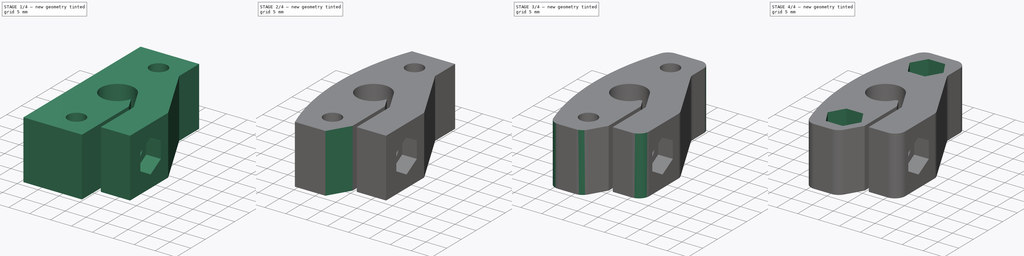
[diagram: build sequence overview — one tinted view per stage of 4, left to right]
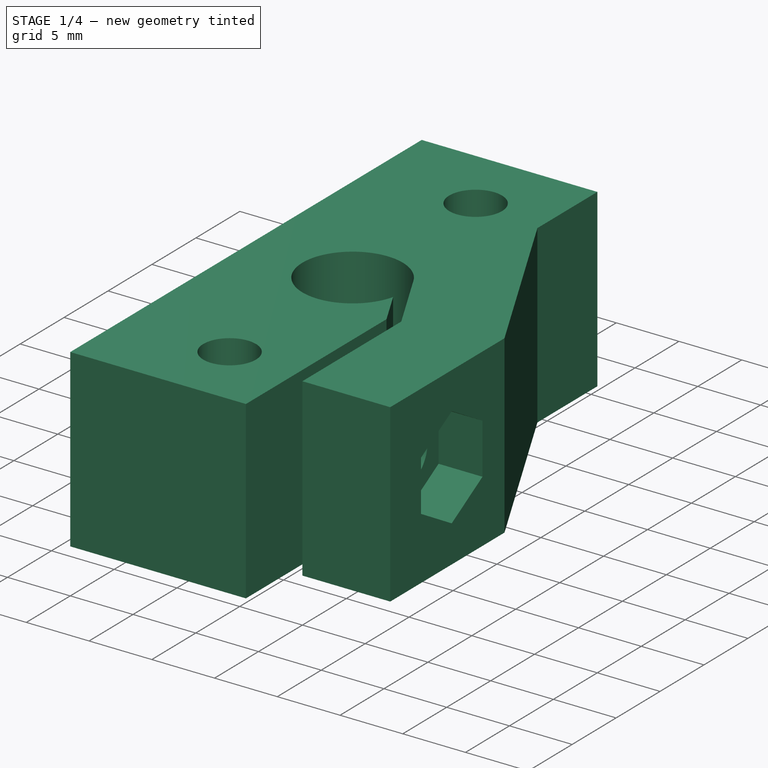
[diagram: stage 1 of 4 — iso view after this stage's code; geometry added in this stage tinted green]
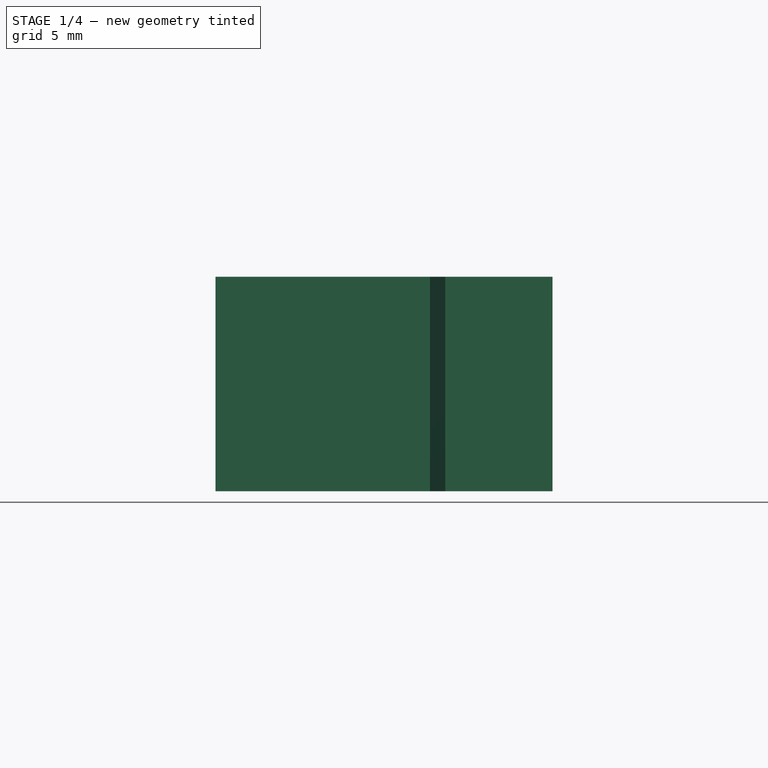
[diagram: stage 1 of 4 — front view after this stage's code; geometry added in this stage tinted green]
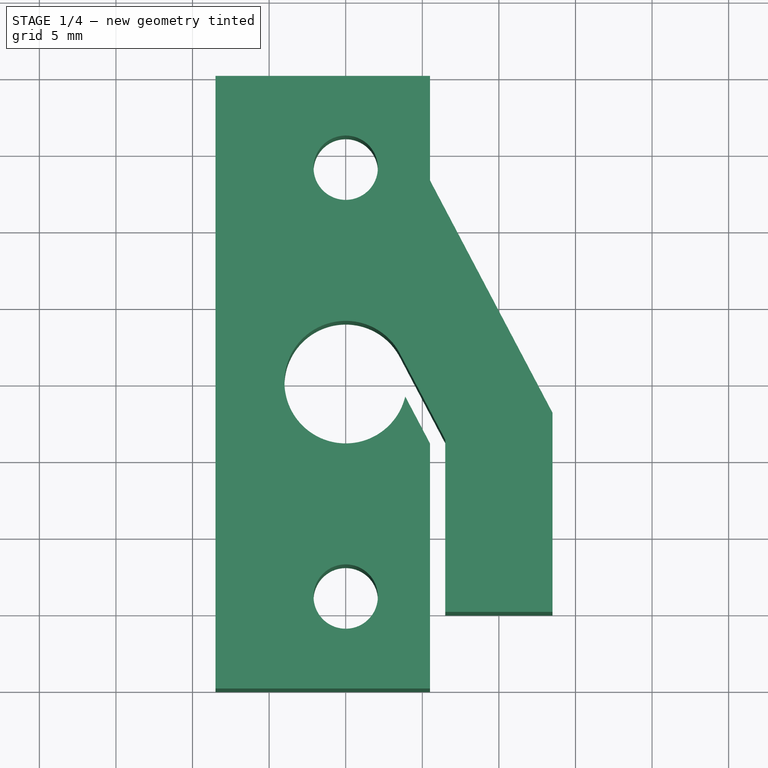
[diagram: stage 1 of 4 — top view after this stage's code; geometry added in this stage tinted green]
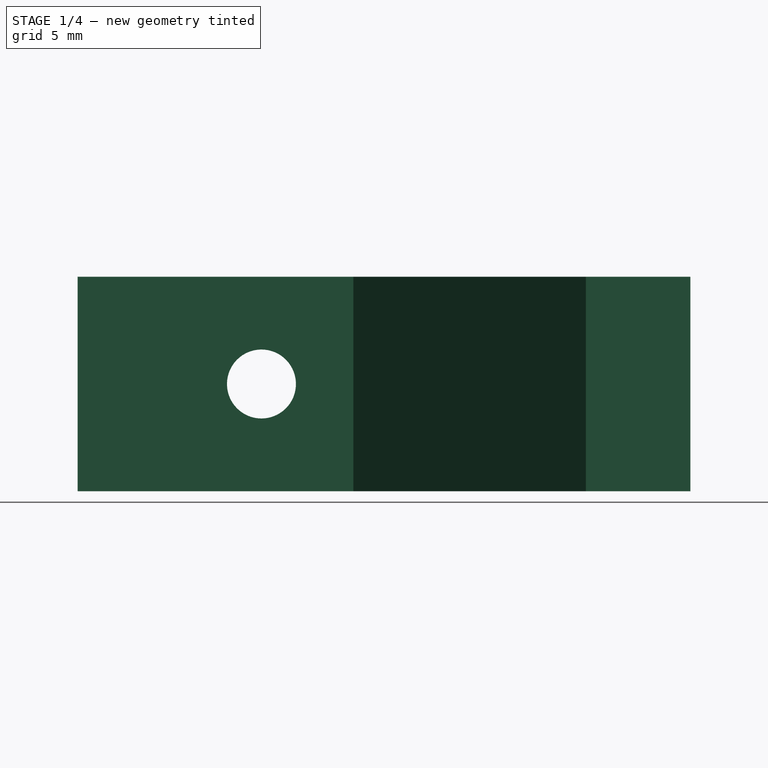
[diagram: stage 1 of 4 — right view after this stage's code; geometry added in this stage tinted green]
FCSTD DOCUMENT  (FreeCAD 0.19R24276 (Git))
Label: Clamp_smoth_rod_8mm_single_screw
License: All rights reserved
LicenseURL: http://en.wikipedia.org/wiki/All_rights_reserved
objects: Sketcher::SketchObject×7, PartDesign::Pocket×5, PartDesign::Pad×2, PartDesign::Fillet×2, PartDesign::Chamfer×1, PartDesign::Mirrored×1, PartDesign::Body×1
note: 29 computed .brp shape members not serialized (recipe doc carries the construction recipe); baked Part::Feature solids carry a one-line shape summary decoded from their .brp

FEATURE [Sketcher::SketchObject] Sketch
  FullyConstrained = false
  MapMode = 5
  Support = -> [XY_Plane]
  sketch-geometry (31):
    g0: Circle CenterX=0 CenterY=0 CenterZ=0 NormalX=0 NormalY=0 NormalZ=1 AngleXU=0 Radius=4
    g1: Circle CenterX=0 CenterY=14 CenterZ=0 NormalX=0 NormalY=0 NormalZ=1 AngleXU=0 Radius=2.1
    g2: Circle CenterX=0 CenterY=-14 CenterZ=0 NormalX=0 NormalY=0 NormalZ=1 AngleXU=0 Radius=2.1
    g3: LineSegment StartX=-8.5 StartY=20 StartZ=0 EndX=-8.5 EndY=-20 EndZ=0
    g4: LineSegment StartX=-8.5 StartY=-20 StartZ=0 EndX=5.5 EndY=-20 EndZ=0
    g5: LineSegment StartX=5.5 StartY=-20 StartZ=0 EndX=5.5 EndY=-4 EndZ=0
    g6: LineSegment StartX=5.5 StartY=-4 StartZ=0 EndX=3.88763 EndY=-0.941445 EndZ=0
    g7: LineSegment StartX=-8.5 StartY=20 StartZ=0 EndX=5.5 EndY=20 EndZ=0
    g8: LineSegment StartX=13.5 StartY=-2 StartZ=0 EndX=13.5 EndY=-15 EndZ=0
    g9: LineSegment StartX=13.5 StartY=-15 StartZ=0 EndX=6.5 EndY=-15 EndZ=0
    g10: LineSegment StartX=6.5 StartY=-15 StartZ=0 EndX=6.5 EndY=-3.75256 EndZ=0
    g11: LineSegment StartX=6.5 StartY=-3.75256 StartZ=0 EndX=3.53843 EndY=1.86534 EndZ=0
    g12: Circle CenterX=47.5 CenterY=0 CenterZ=0 NormalX=0 NormalY=0 NormalZ=1 AngleXU=0 Radius=56
    g13: LineSegment StartX=2.02073 StartY=-17.5 StartZ=0 EndX=4.04145 EndY=-14 EndZ=0
    g14: LineSegment StartX=4.04145 StartY=-14 StartZ=0 EndX=2.02073 EndY=-10.5 EndZ=0
    g15: LineSegment StartX=2.02073 StartY=-10.5 StartZ=0 EndX=-2.02073 EndY=-10.5 EndZ=0
    g16: LineSegment StartX=-2.02073 StartY=-10.5 StartZ=0 EndX=-4.04145 EndY=-14 EndZ=0
    g17: LineSegment StartX=-4.04145 StartY=-14 StartZ=0 EndX=-2.02073 EndY=-17.5 EndZ=0
    g18: LineSegment StartX=-2.02073 StartY=-17.5 StartZ=0 EndX=2.02073 EndY=-17.5 EndZ=0
    g19: Circle CenterX=0 CenterY=-14 CenterZ=0 NormalX=0 NormalY=0 NormalZ=1 AngleXU=0 Radius=4.04145
    g20: LineSegment StartX=4.68847 StartY=-2.46058 StartZ=0 EndX=5.57308 EndY=-1.99424 EndZ=0
    g21: ArcOfCircle CenterX=0 CenterY=0 CenterZ=0 NormalX=0 NormalY=0 NormalZ=1 AngleXU=0 Radius=4 StartAngle=0.485144 EndAngle=6.0456
    g22: LineSegment StartX=2.02073 StartY=10.5 StartZ=0 EndX=4.04145 EndY=14 EndZ=0
    g23: LineSegment StartX=4.04145 StartY=14 StartZ=0 EndX=2.02073 EndY=17.5 EndZ=0
    g24: LineSegment StartX=2.02073 StartY=17.5 StartZ=0 EndX=-2.02073 EndY=17.5 EndZ=0
    g25: LineSegment StartX=-2.02073 StartY=17.5 StartZ=0 EndX=-4.04145 EndY=14 EndZ=0
    g26: LineSegment StartX=-4.04145 StartY=14 StartZ=0 EndX=-2.02073 EndY=10.5 EndZ=0
    g27: LineSegment StartX=-2.02073 StartY=10.5 StartZ=0 EndX=2.02073 EndY=10.5 EndZ=0
    g28: Circle CenterX=0 CenterY=14 CenterZ=0 NormalX=0 NormalY=0 NormalZ=1 AngleXU=0 Radius=4.04145
    g29: LineSegment StartX=5.5 StartY=20 StartZ=0 EndX=5.5 EndY=13.1755 EndZ=0
    g30: LineSegment StartX=5.5 StartY=13.1755 StartZ=0 EndX=13.5 EndY=-2 EndZ=0
  constraints (79):
    c: Coincident(g0,g-1)
    c: PointOnObject(g1,g-2)
    c: Coincident(g3,g4)
    c: Horizontal(g4)
    c: Coincident(g4,g5)
    c: Vertical(g5)
    c: Coincident(g5,g6)
    c: PointOnObject(g6,g0)
    c: Coincident(g3,g7)
    c: Horizontal(g7)
    c: Vertical(g8)
    c: Coincident(g8,g9)
    c: Horizontal(g9)
    c: Coincident(g9,g10)
    c: Vertical(g10)
    c: Coincident(g10,g11)
    c: DistanceX(g9,g9) = 7
    c: DistanceX(g4,g9) = 1
    c: Parallel(g6,g11)
    c: Symmetric(g1,g2,g0)
    c: Radius(g1) = 2.1
    c: Equal(g2,g1)
    c: DistanceY(g1) = 14
    c: DistanceY(g3,g3) = 40
    c: PointOnObject(g12,g-1)
    c: Tangent(g12,g3)
    c: Radius(g12) = 56
    c: Radius(g0) = 4
    c: DistanceX(g3,g0) = 8.5
    c: Coincident(g13,g14)
    c: Coincident(g14,g15)
    c: Coincident(g15,g16)
    c: Coincident(g16,g17)
    c: Coincident(g17,g18)
    c: Coincident(g18,g13)
    c: Equal(g13, g14-g18) x5
    c: PointOnObject(g13,g19)
    c: PointOnObject(g14,g19)
    c: PointOnObject(g15,g19)
    c: PointOnObject(g16,g19)
    c: PointOnObject(g17,g19)
    c: PointOnObject(g18,g19)
    c: Coincident(g19,g2)
    c: Horizontal(g18)
    c: DistanceY(g13,g14) = 7
    c: DistanceX(g4,g4) = 14
    c: PointOnObject(g20,g6)
    c: PointOnObject(g20,g11)
    c: Perpendicular(g11,g20)
    c: Distance(g20) = 1
    c: Symmetric(g3,g3,g-1)
    c: Coincident(g21,g-1)
    c: Coincident(g21,g6)
    c: DistanceY(g8,g7) = 35
    c: Coincident(g22,g23)
    c: Coincident(g23,g24)
    c: Coincident(g24,g25)
    c: Coincident(g25,g26)
    c: Coincident(g26,g27)
    c: Coincident(g27,g22)
    c: Equal(g22, g23-g27) x5
    c: PointOnObject(g22,g28)
    c: PointOnObject(g23,g28)
    c: PointOnObject(g24,g28)
    c: PointOnObject(g25,g28)
    c: PointOnObject(g26,g28)
    c: PointOnObject(g27,g28)
    c: Coincident(g28,g1)
    c: Equal(g28,g19)
    c: Horizontal(g27)
    c: Tangent(g21,g11) = -1.5708
    c: DistanceX(g7,g7) = 14
    c: DistanceY(g5,g5) = 16
    c: Coincident(g7,g29)
    c: Vertical(g29)
    c: Coincident(g29,g30)
    c: Coincident(g30,g8)
    c: Parallel(g30,g11)
    c: DistanceY(g8,g8) = 13
FEATURE [PartDesign::Pad] Pad
  Direction = (1,1,1)
  Length = 14
  Length2 = 100
  Midplane = true
  Profile = -> Sketch
  Type = 0
FEATURE [Sketcher::SketchObject] Sketch001
  FullyConstrained = true
  MapMode = 5
  Placement = pos=(13.5,0,0) rot=(0.57735,0.57735,0.57735;2.0944rad)
  Support = -> [Pad]
  sketch-geometry (1):
    g0: Circle CenterX=-8 CenterY=0 CenterZ=0 NormalX=0 NormalY=0 NormalZ=1 AngleXU=0 Radius=2.25
  constraints (3):
    c: PointOnObject(g0,g-1)
    c: DistanceX(g0) = -8
    c: Radius(g0) = 2.25
FEATURE [PartDesign::Pocket] Pocket
  BaseFeature = -> Pad
  Length = 5
  Length2 = 100
  Profile = -> Sketch001
  Type = 1
FEATURE [Sketcher::SketchObject] Sketch002
  FullyConstrained = true
  MapMode = 5
  Placement = pos=(13.5,0,0) rot=(0.57735,0.57735,0.57735;2.0944rad)
  Support = -> [Pocket]
  sketch-geometry (7):
    g0: LineSegment StartX=-4.5 StartY=2.02073 StartZ=0 EndX=-8 EndY=4.04145 EndZ=0
    g1: LineSegment StartX=-8 StartY=4.04145 StartZ=0 EndX=-11.5 EndY=2.02073 EndZ=0
    g2: LineSegment StartX=-11.5 StartY=2.02073 StartZ=0 EndX=-11.5 EndY=-2.02073 EndZ=0
    g3: LineSegment StartX=-11.5 StartY=-2.02073 StartZ=0 EndX=-8 EndY=-4.04145 EndZ=0
    g4: LineSegment StartX=-8 StartY=-4.04145 StartZ=0 EndX=-4.5 EndY=-2.02073 EndZ=0
    g5: LineSegment StartX=-4.5 StartY=-2.02073 StartZ=0 EndX=-4.5 EndY=2.02073 EndZ=0
    g6: Circle CenterX=-8 CenterY=0 CenterZ=0 NormalX=0 NormalY=0 NormalZ=1 AngleXU=0 Radius=4.04145
  constraints (17):
    c: Coincident(g0,g1)
    c: Coincident(g1,g2)
    c: Coincident(g2,g3)
    c: Coincident(g3,g4)
    c: Coincident(g4,g5)
    c: Coincident(g5,g0)
    c: Equal(g0, g1-g5) x5
    c: PointOnObject(g0,g6)
    c: PointOnObject(g1,g6)
    c: PointOnObject(g2,g6)
    c: PointOnObject(g3,g6)
    c: PointOnObject(g4,g6)
    c: PointOnObject(g5,g6)
    c: PointOnObject(g6,g-1)
    c: Vertical(g5)
    c: DistanceX(g2,g4) = 7
    c: DistanceX(g6) = -8
FEATURE [PartDesign::Pocket] Pocket001
  BaseFeature = -> Pocket
  Length = 3.5
  Length2 = 100
  Profile = -> Sketch002
  Type = 0
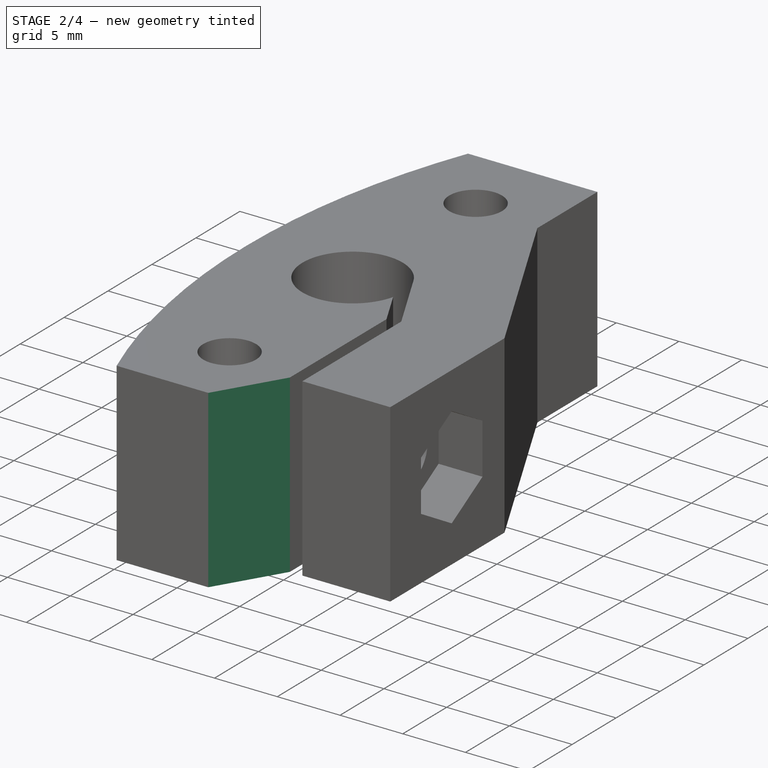
[diagram: stage 2 of 4 — iso view after this stage's code; geometry added in this stage tinted green]
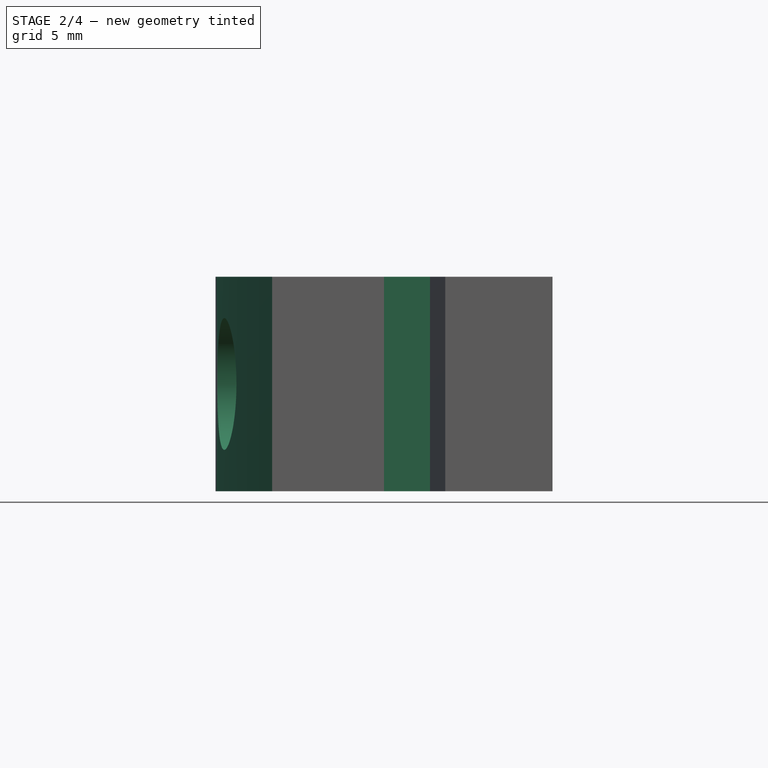
[diagram: stage 2 of 4 — front view after this stage's code; geometry added in this stage tinted green]
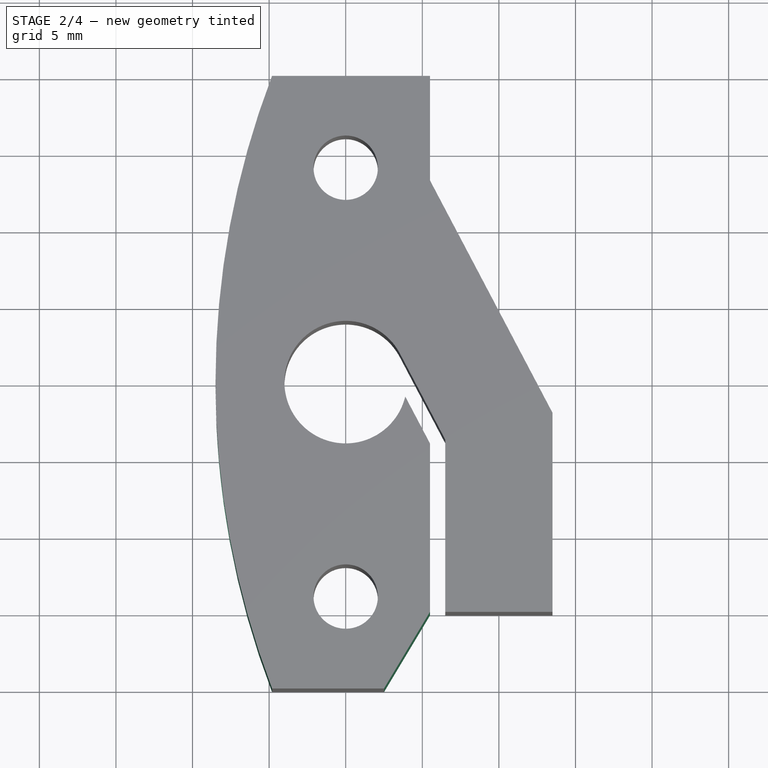
[diagram: stage 2 of 4 — top view after this stage's code; geometry added in this stage tinted green]
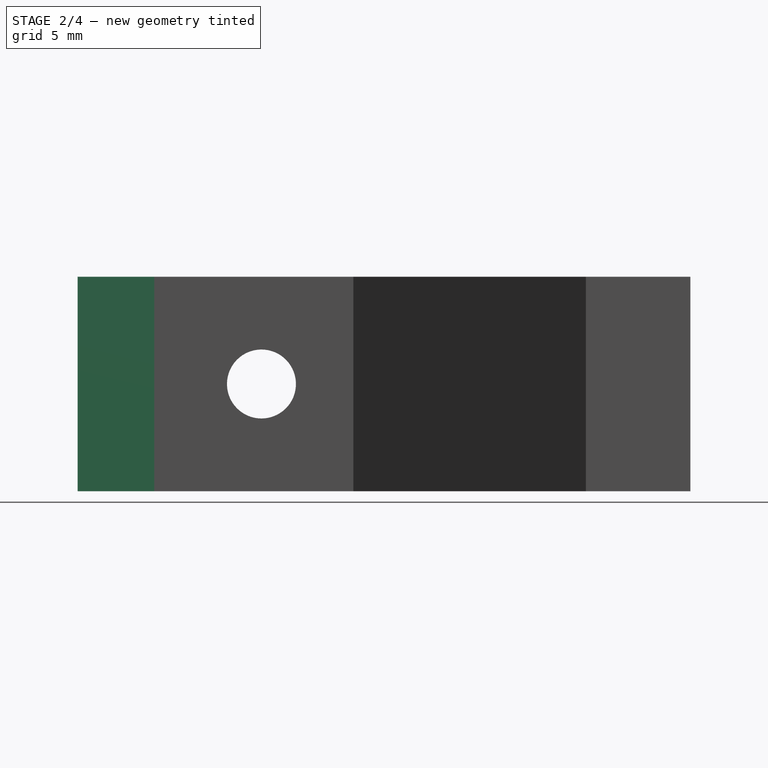
[diagram: stage 2 of 4 — right view after this stage's code; geometry added in this stage tinted green]
FEATURE [Sketcher::SketchObject] Sketch003
  FullyConstrained = true
  MapMode = 5
  Placement = pos=(-8.5,0,0) rot=(0.57735,-0.57735,-0.57735;2.0944rad)
  Support = -> [Pocket001]
  sketch-geometry (1):
    g0: Circle CenterX=8 CenterY=0 CenterZ=0 NormalX=0 NormalY=0 NormalZ=1 AngleXU=0 Radius=4.3
  constraints (3):
    c: PointOnObject(g0,g-1)
    c: Radius(g0) = 4.3
    c: DistanceX(g-1,g0) = 8
FEATURE [PartDesign::Pocket] Pocket002
  BaseFeature = -> Pocket001
  Length = 5
  Length2 = 100
  Profile = -> Sketch003
  Type = 0
FEATURE [Sketcher::SketchObject] Sketch004
  FullyConstrained = true
  MapMode = 5
  Placement = pos=(0,0,7) rot=(0,0,1;0rad)
  Support = -> [Pocket002]
  sketch-geometry (2):
    g0: Circle CenterX=47.5 CenterY=0 CenterZ=0 NormalX=0 NormalY=0 NormalZ=1 AngleXU=0 Radius=56
    g1: Circle CenterX=47.5 CenterY=0 CenterZ=0 NormalX=0 NormalY=0 NormalZ=1 AngleXU=0 Radius=62
  constraints (5):
    c: PointOnObject(g0,g-1)
    c: Radius(g0) = 56
    c: DistanceX(g0) = 47.5
    c: Coincident(g1,g0)
    c: Radius(g1) = 62
FEATURE [PartDesign::Pocket] Pocket003
  BaseFeature = -> Pocket002
  Length = 5
  Length2 = 100
  Profile = -> Sketch004
  Type = 1
FEATURE [PartDesign::Chamfer] Chamfer
  Angle = 45
  Base = -> Pocket003 [Edge49]
  BaseFeature = -> Pocket003
  ChamferType = 1
  FlipDirection = false
  Size = 5
  Size2 = 3
  SupportTransform = false
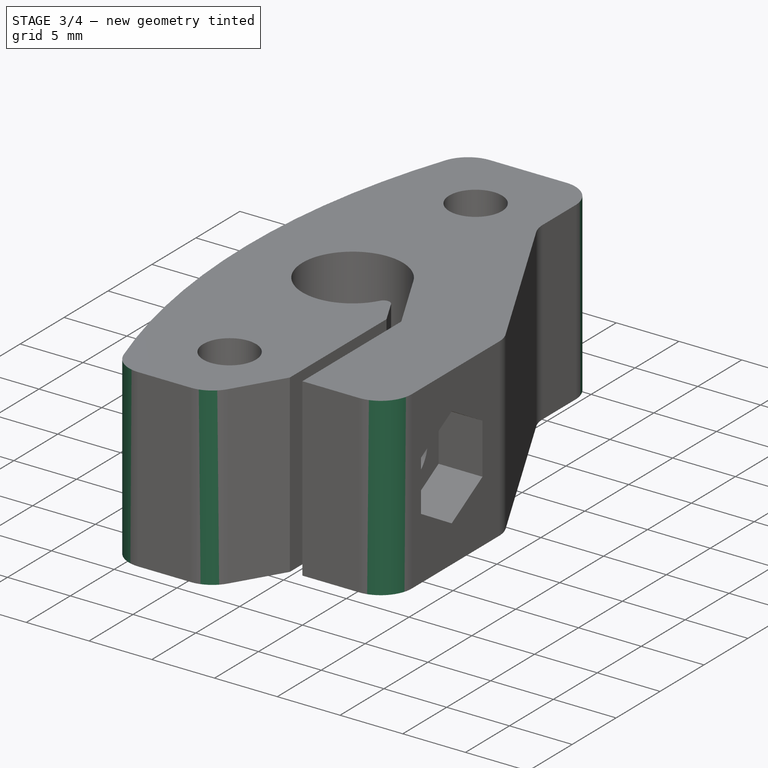
[diagram: stage 3 of 4 — iso view after this stage's code; geometry added in this stage tinted green]
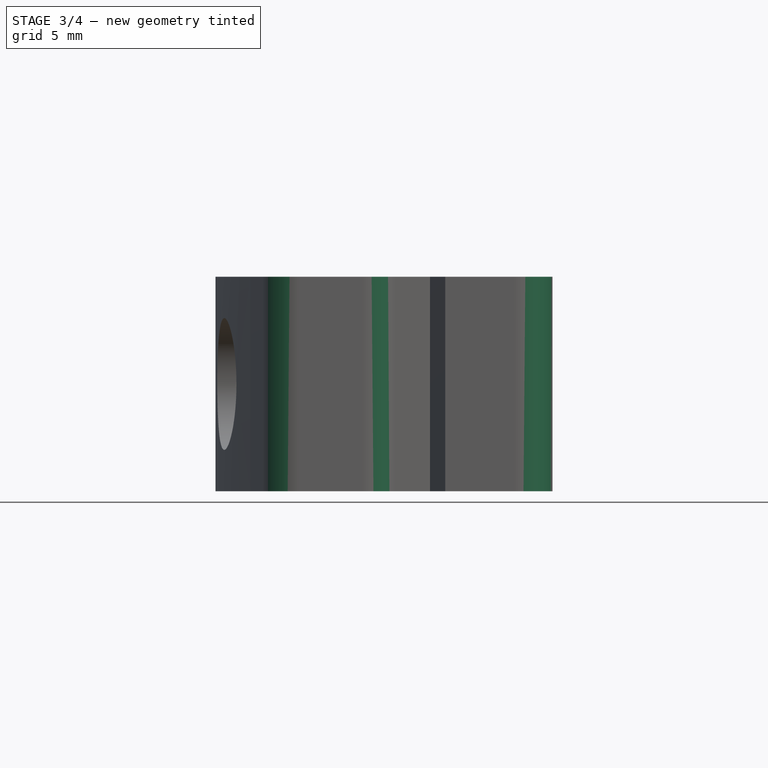
[diagram: stage 3 of 4 — front view after this stage's code; geometry added in this stage tinted green]
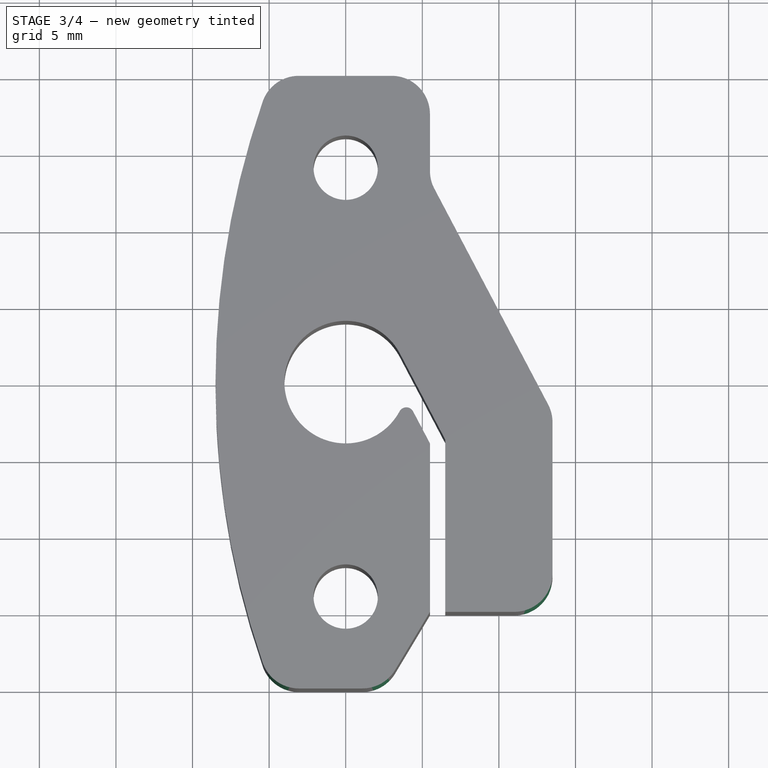
[diagram: stage 3 of 4 — top view after this stage's code; geometry added in this stage tinted green]
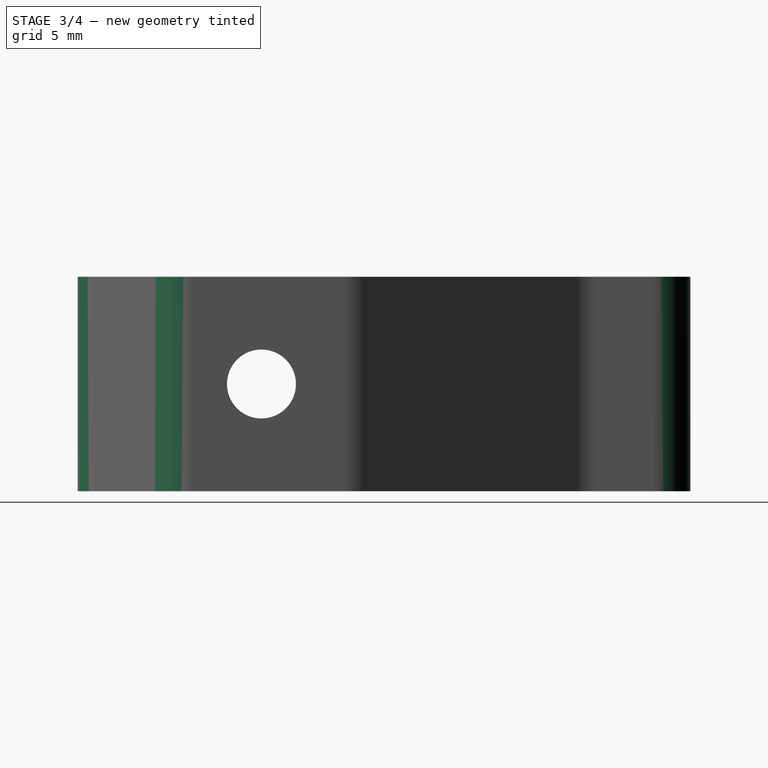
[diagram: stage 3 of 4 — right view after this stage's code; geometry added in this stage tinted green]
FEATURE [PartDesign::Fillet] Fillet
  Base = -> Chamfer [Edge21,Edge25,Edge41,Edge39,Edge45,Edge43,Edge35]
  BaseFeature = -> Chamfer
  Radius = 2.5
  SupportTransform = false
FEATURE [PartDesign::Fillet] Fillet001
  Base = -> Fillet [Edge34]
  BaseFeature = -> Fillet
  Radius = 0.5
  SupportTransform = false
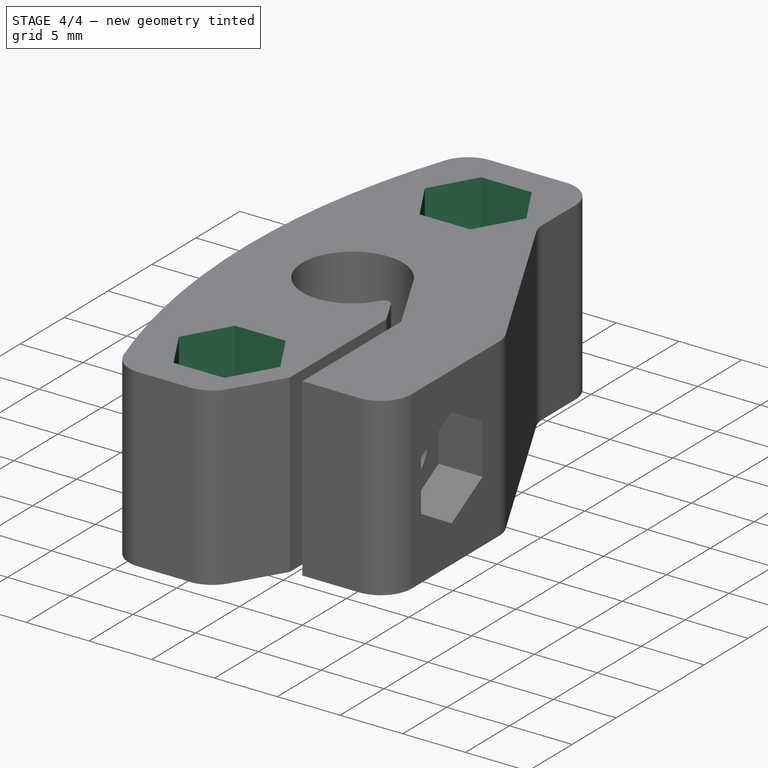
[diagram: stage 4 of 4 — iso view after this stage's code; geometry added in this stage tinted green]
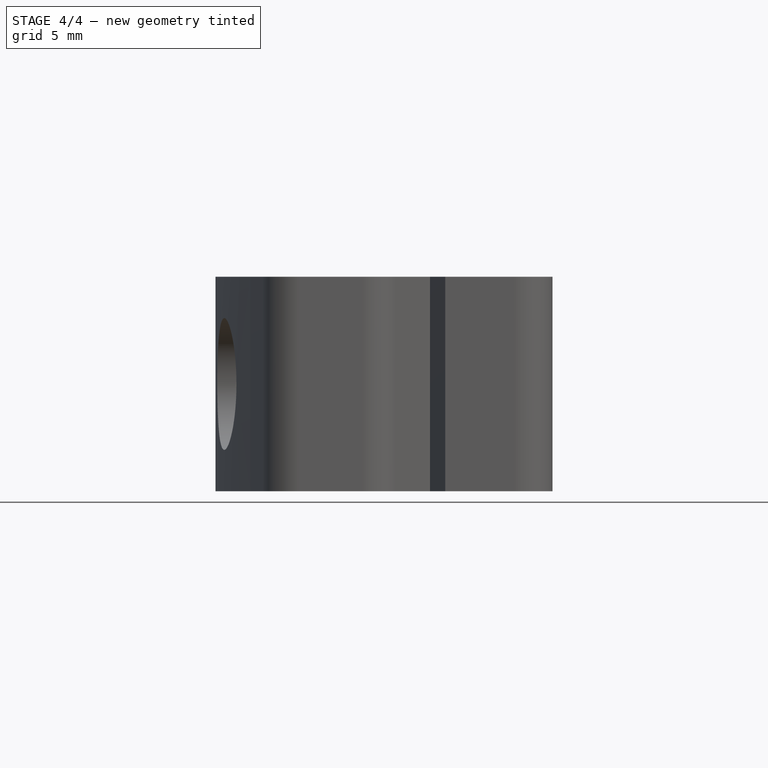
[diagram: stage 4 of 4 — front view after this stage's code; geometry added in this stage tinted green]
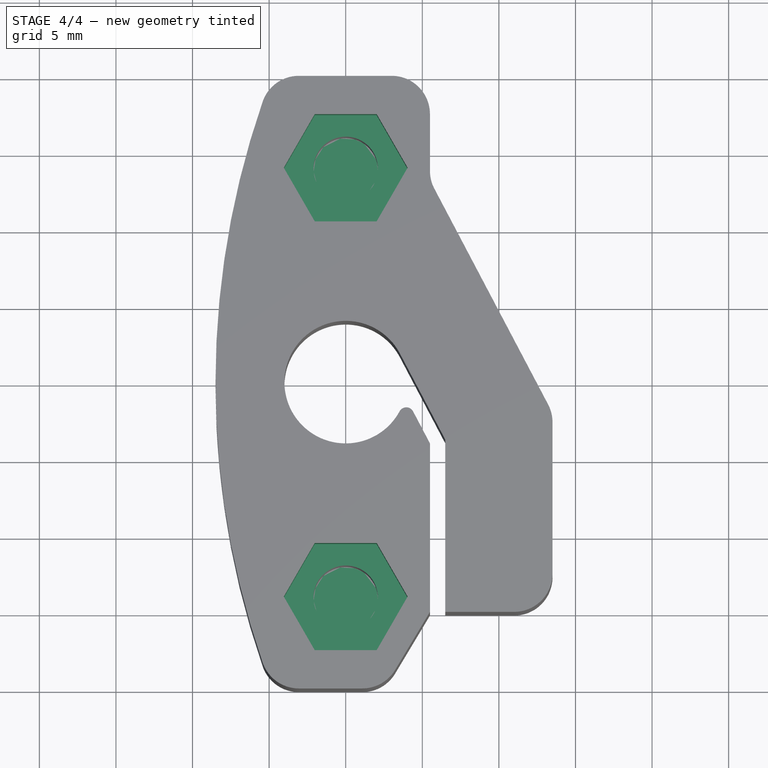
[diagram: stage 4 of 4 — top view after this stage's code; geometry added in this stage tinted green]
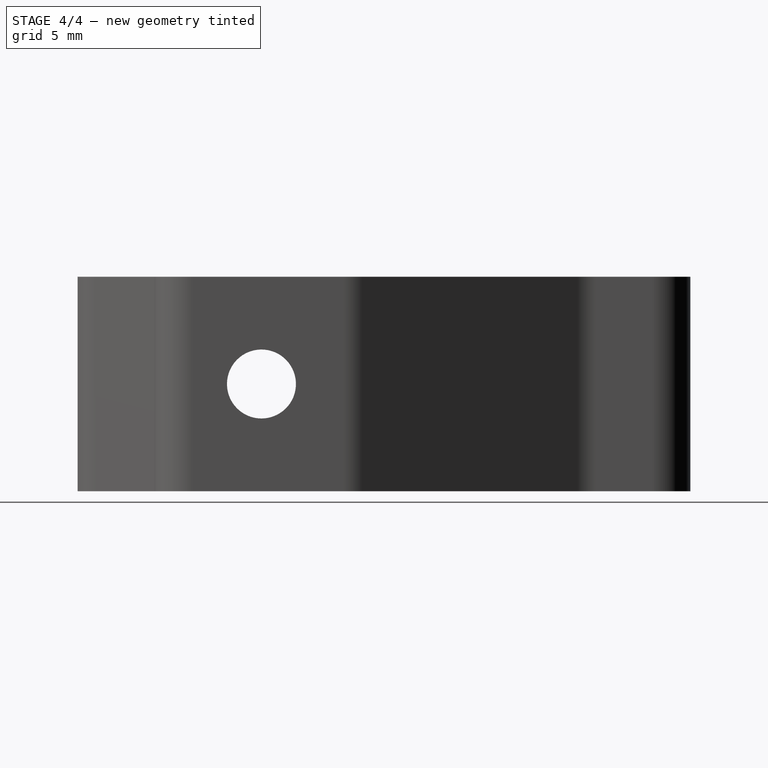
[diagram: stage 4 of 4 — right view after this stage's code; geometry added in this stage tinted green]
FEATURE [Sketcher::SketchObject] Sketch005
  FullyConstrained = true
  MapMode = 5
  Placement = pos=(0,0,-7) rot=(1,0,0;3.14159rad)
  Support = -> [Fillet001]
  sketch-geometry (14):
    g0: LineSegment StartX=4.04145 StartY=14 StartZ=0 EndX=2.02073 EndY=17.5 EndZ=0
    g1: LineSegment StartX=2.02073 StartY=17.5 StartZ=0 EndX=-2.02073 EndY=17.5 EndZ=0
    g2: LineSegment StartX=-2.02073 StartY=17.5 StartZ=0 EndX=-4.04145 EndY=14 EndZ=0
    g3: LineSegment StartX=-4.04145 StartY=14 StartZ=0 EndX=-2.02073 EndY=10.5 EndZ=0
    g4: LineSegment StartX=-2.02073 StartY=10.5 StartZ=0 EndX=2.02073 EndY=10.5 EndZ=0
    g5: LineSegment StartX=2.02073 StartY=10.5 StartZ=0 EndX=4.04145 EndY=14 EndZ=0
    g6: Circle CenterX=0 CenterY=14 CenterZ=0 NormalX=0 NormalY=0 NormalZ=1 AngleXU=0 Radius=4.04145
    g7: LineSegment StartX=4.04145 StartY=-14 StartZ=0 EndX=2.02073 EndY=-10.5 EndZ=0
    g8: LineSegment StartX=2.02073 StartY=-10.5 StartZ=0 EndX=-2.02073 EndY=-10.5 EndZ=0
    g9: LineSegment StartX=-2.02073 StartY=-10.5 StartZ=0 EndX=-4.04145 EndY=-14 EndZ=0
    g10: LineSegment StartX=-4.04145 StartY=-14 StartZ=0 EndX=-2.02073 EndY=-17.5 EndZ=0
    g11: LineSegment StartX=-2.02073 StartY=-17.5 StartZ=0 EndX=2.02073 EndY=-17.5 EndZ=0
    g12: LineSegment StartX=2.02073 StartY=-17.5 StartZ=0 EndX=4.04145 EndY=-14 EndZ=0
    g13: Circle CenterX=0 CenterY=-14 CenterZ=0 NormalX=0 NormalY=0 NormalZ=1 AngleXU=0 Radius=4.04145
  constraints (33):
    c: Coincident(g0,g1)
    c: Coincident(g1,g2)
    c: Coincident(g2,g3)
    c: Coincident(g3,g4)
    c: Coincident(g4,g5)
    c: Coincident(g5,g0)
    c: Equal(g0, g1-g5) x5
    c: PointOnObject(g0,g6)
    c: PointOnObject(g1,g6)
    c: PointOnObject(g2,g6)
    c: PointOnObject(g3,g6)
    c: PointOnObject(g4,g6)
    c: PointOnObject(g5,g6)
    c: PointOnObject(g6,g-2)
    c: Coincident(g7,g8)
    c: Coincident(g8,g9)
    c: Coincident(g9,g10)
    c: Coincident(g10,g11)
    c: Coincident(g11,g12)
    c: Coincident(g12,g7)
    c: Equal(g7, g8-g12) x5
    c: PointOnObject(g7,g13)
    c: PointOnObject(g8,g13)
    c: PointOnObject(g9,g13)
    c: PointOnObject(g10,g13)
    c: PointOnObject(g11,g13)
    c: PointOnObject(g12,g13)
    c: Equal(g6,g13)
    c: Horizontal(g4)
    c: Horizontal(g8)
    c: DistanceY(g3,g1) = 7
    c: Symmetric(g6,g13,g-1)
    c: DistanceY(g6) = 14
FEATURE [PartDesign::Pocket] Pocket004
  BaseFeature = -> Fillet001
  Length = 4
  Length2 = 100
  Profile = -> Sketch005
  Type = 0
FEATURE [PartDesign::Mirrored] Mirrored
  BaseFeature = -> Pocket004
  MirrorPlane = -> XY_Plane
  Originals = -> [Pocket004]
FEATURE [Sketcher::SketchObject] Sketch006
  FullyConstrained = true
  MapMode = 5
  Placement = pos=(0,0,-3) rot=(1,0,0;3.14159rad)
  Support = -> [Mirrored]
  sketch-geometry (2):
    g0: Circle CenterX=0 CenterY=14 CenterZ=0 NormalX=0 NormalY=0 NormalZ=1 AngleXU=0 Radius=2.1
    g1: Circle CenterX=0 CenterY=-14 CenterZ=0 NormalX=0 NormalY=0 NormalZ=1 AngleXU=0 Radius=2.1
  constraints (5):
    c: PointOnObject(g0,g-2)
    c: Symmetric(g0,g1,g-1)
    c: DistanceY(g1,g0) = 28
    c: Equal(g1,g0)
    c: Radius(g1) = 2.1
FEATURE [PartDesign::Pad] Pad001
  BaseFeature = -> Mirrored
  Direction = (1,1,1)
  Length = 0.2
  Length2 = 100
  Profile = -> Sketch006
  Reversed = true
  Type = 0
FEATURE [PartDesign::Body] Body
  Group = -> [Sketch,Pad,Sketch001,Pocket,Sketch002,Pocket001,Sketch003,Pocket002,Sketch004,Pocket003,Chamfer,Fillet,Fillet001,Sketch005,Pocket004,Mirrored,Sketch006,Pad001]
  Origin = -> Origin
  Tip = -> Pad001
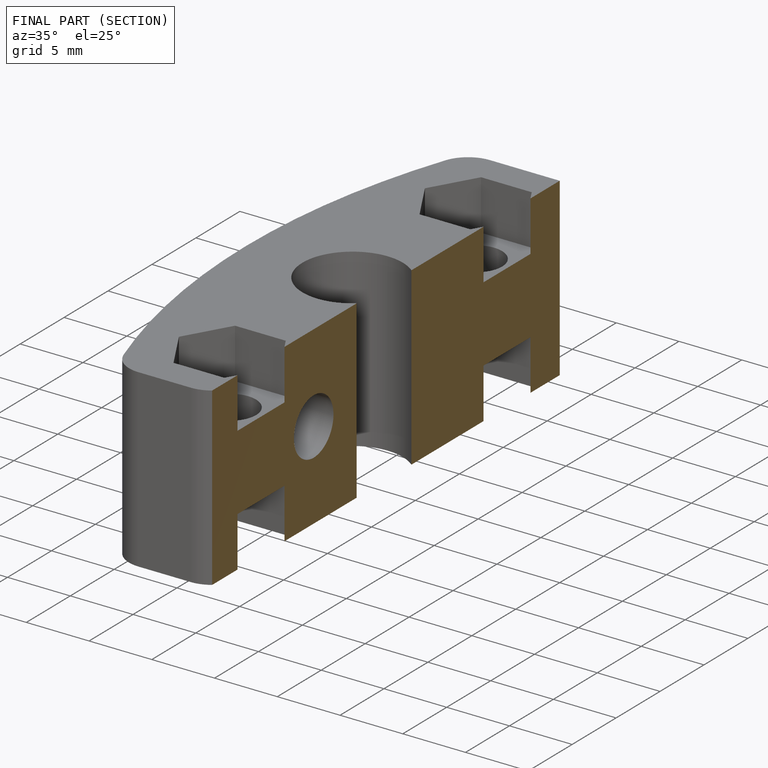
[diagram: finished part — half-section view (interior)]
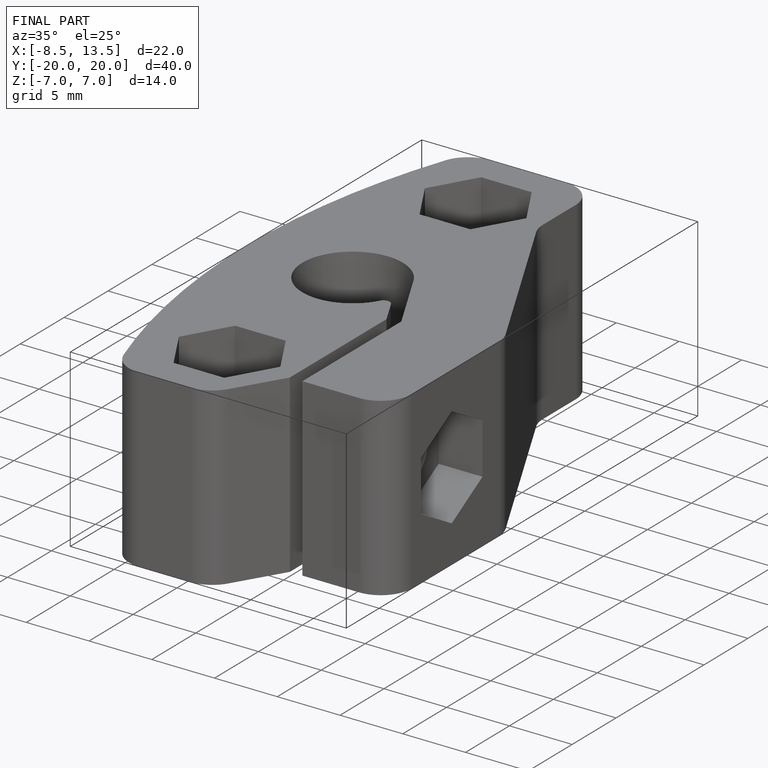
[diagram: finished part — iso view with bounding-box wireframe]
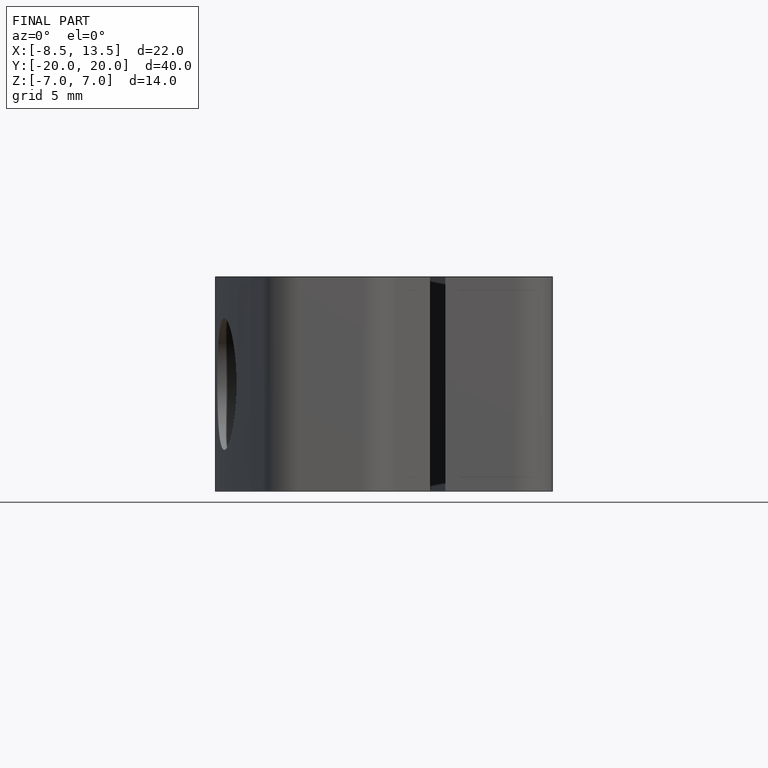
[diagram: finished part — front view with bounding-box wireframe]
